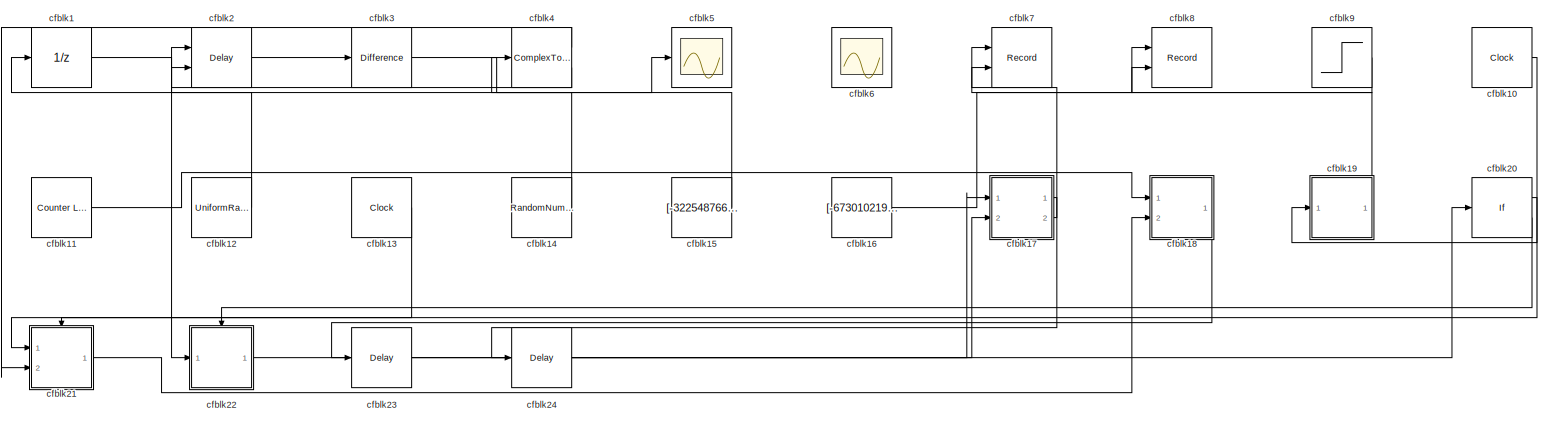
[diagram: root canvas - part 1/1, most of the canvas]
MODEL slx_ebdbb75d2bf2
KIND model
CONFIG AbsTol = auto
CONFIG EnableMultiTasking = off
CONFIG FixedStep = auto
CONFIG MaxStep = auto
CONFIG MinStep = auto
CONFIG RelTol = 1e-3
CONFIG SampleTimeConstraint = Unconstrained
CONFIG SolverName = VariableStepAuto
CONFIG StartTime = 0.0
CONFIG StopTime = 10.0
BLOCK [UnitDelay] cfblk1
  HasFrameUpgradeWarning = on
BLOCK [Clock] cfblk10
BLOCK [Reference] cfblk11  REF=simulink/Sources/Counter
Limited
  Ports = [0, 1]
  SourceBlock = simulink/Sources/Counter\nLimited
  SourceProductBaseCode = SL
  SourceType = Counter Limited
BLOCK [UniformRandomNumber] cfblk12
  Maximum = [4403446205.768578]
  Minimum = [-8333604584.276587]
  SampleTime = 0.1
  Seed = [18033100.000000]
BLOCK [Clock] cfblk13
BLOCK [RandomNumber] cfblk14
  Mean = [-85676.971278]
  SampleTime = 0.1
  Seed = [449411398.000000]
  Variance = [37777.208341]
BLOCK [Constant] cfblk15
  SampleTime = 1
  Value = [-322548766.583663]
BLOCK [Constant] cfblk16
  SampleTime = 1
  Value = [-673010219.535015]
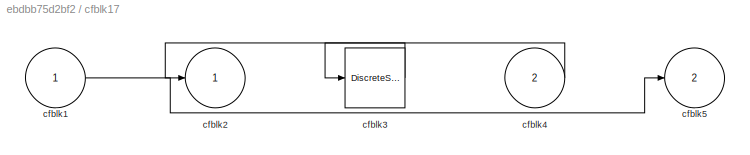
BLOCK [SubSystem] cfblk17
  Ports = [2, 2]
  RequestExecContextInheritance = off
BLOCK [Inport] cfblk17/cfblk1
BLOCK [Outport] cfblk17/cfblk2
BLOCK [DiscreteStateSpace] cfblk17/cfblk3
BLOCK [Inport] cfblk17/cfblk4
  Port = 2
BLOCK [Outport] cfblk17/cfblk5
  Port = 2
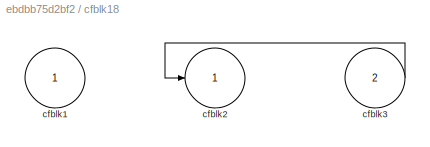
BLOCK [SubSystem] cfblk18
  Ports = [2, 1]
  RequestExecContextInheritance = off
BLOCK [Inport] cfblk18/cfblk1
BLOCK [Outport] cfblk18/cfblk2
BLOCK [Inport] cfblk18/cfblk3
  Port = 2
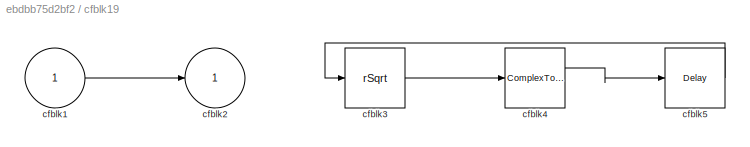
BLOCK [SubSystem] cfblk19
  Ports = [1, 1]
  RequestExecContextInheritance = off
BLOCK [Inport] cfblk19/cfblk1
BLOCK [Outport] cfblk19/cfblk2
BLOCK [Sqrt] cfblk19/cfblk3
  AlgorithmType = Newton-Raphson
  Operator = rSqrt
BLOCK [ComplexToMagnitudeAngle] cfblk19/cfblk4
  Ports = [1, 2]
BLOCK [Delay] cfblk19/cfblk5
  InputPortMap = u0
  Ports = [1, 1]
  SampleTime = 1
BLOCK [Delay] cfblk2
  InputPortMap = u0,e6
  Ports = [2, 1]
  SampleTime = 1
  ShowEnablePort = on
BLOCK [If] cfblk20
  IfExpression = u1 >= 0
  Ports = [1, 2]
  SampleTime = 1
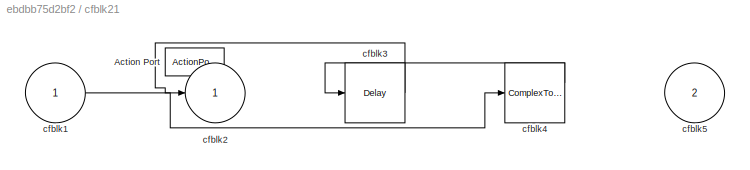
BLOCK [SubSystem] cfblk21
  Ports = [2, 1, 0, 0, 0, 0, 0, 1]
  RequestExecContextInheritance = off
  TreatAsAtomicUnit = on
BLOCK [ActionPort] cfblk21/Action Port
  ActionPortLabel = if(u1 >= 0)
BLOCK [Inport] cfblk21/cfblk1
BLOCK [Outport] cfblk21/cfblk2
BLOCK [Delay] cfblk21/cfblk3
  InputPortMap = u0
  Ports = [1, 1]
BLOCK [ComplexToMagnitudeAngle] cfblk21/cfblk4
  Ports = [1, 2]
BLOCK [Inport] cfblk21/cfblk5
  Port = 2
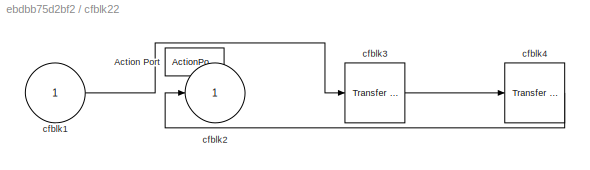
BLOCK [SubSystem] cfblk22
  Ports = [1, 1, 0, 0, 0, 0, 0, 1]
  RequestExecContextInheritance = off
  TreatAsAtomicUnit = on
BLOCK [ActionPort] cfblk22/Action Port
  ActionPortLabel = else
BLOCK [Inport] cfblk22/cfblk1
BLOCK [Outport] cfblk22/cfblk2
BLOCK [Reference] cfblk22/cfblk3  REF=simulink/Discrete/Transfer Fcn
First Order
  Ports = [1, 1]
  SourceBlock = simulink/Discrete/Transfer Fcn\nFirst Order
  SourceProductBaseCode = SL
  SourceType = First Order Transfer Fcn
BLOCK [Reference] cfblk22/cfblk4  REF=simulink/Discrete/Transfer Fcn
Real Zero
  Ports = [1, 1]
  SourceBlock = simulink/Discrete/Transfer Fcn\nReal Zero
  SourceProductBaseCode = SL
  SourceType = Transfer Fcn Real Zero
BLOCK [Delay] cfblk23
  InputPortMap = u0
  Ports = [1, 1]
  SampleTime = 1
BLOCK [Delay] cfblk24
  InputPortMap = u0
  Ports = [1, 1]
  SampleTime = 1
BLOCK [Reference] cfblk3  REF=simulink/Discrete/Difference
  Ports = [1, 1]
  SourceBlock = simulink/Discrete/Difference
  SourceProductBaseCode = SL
  SourceType = Difference
BLOCK [ComplexToRealImag] cfblk4
  Ports = [1, 2]
BLOCK [Scope] cfblk5
  Floating = off
  NumInputPorts = 1
  Ports = [1]
BLOCK [Scope] cfblk6
  Floating = on
  NumInputPorts = 1
  Ports = []
BLOCK [Record] cfblk7
  CompatibilityTag = XY
  FileSettingsInternal = {"entries":[{"content":{"excelSettings":{"content":{},"type":"Streamout.ExcelSettings"}},"type":"Streamout.FileSettingStorage","uuid":"5c71d447-f7da-4f7c-b588-233883b38dc8"}],"packageUris":["http://schema.mathworks.com/mf0/streamout_blocks/R2020a"],"version":"1.0"}
  Layout = [1 1]
  Ports = [2]
  SignalsInternal = {"entries":[{"content":{"signals":[{"content":{"blockPath":["sampleModel142/cfblk7"],"channel":[],"dimensions":[1],"domain":"sampleModel142/cfblk7","lineColor":"#a2142f","plots":[1],"port":1,"sid":[""],"signalID":5084,"signalName":"cfblk19"},"type":"RecordBlkView.Signal","uuid":"97ec9cb9-f7b3-439a-8cdd-f76885870326"},{"content":{"blockPath":["sampleModel142/cfblk7"],"channel":[],"dimensions":[1],"...<+381ch>
  VisualizationBindings = {"xyplotplugin":{"info":[{"series":[{"bindingParametersList":[{"parameter":"X-Axis","signalID":5084,"signalName":"cfblk19"},{"parameter":"Y-Axis","signalID":5088,"signalName":"cfblk17:2"}],"seriesID":5101}],"subplotID":1}]}}
BLOCK [Record] cfblk8
  CompatibilityTag = XY
  FileSettingsInternal = {"entries":[{"content":{"excelSettings":{"content":{},"type":"Streamout.ExcelSettings"}},"type":"Streamout.FileSettingStorage","uuid":"71c9d5a3-c152-467a-b858-d0dacf1fa973"}],"packageUris":["http://schema.mathworks.com/mf0/streamout_blocks/R2020a"],"version":"1.0"}
  Layout = [1 1]
  Ports = [2]
  SignalsInternal = {"entries":[{"content":{"signals":[{"content":{"blockPath":["sampleModel142/cfblk8"],"channel":[],"dimensions":[1],"domain":"sampleModel142/cfblk8","lineColor":"#a2142f","plots":[1],"port":1,"sid":[""],"signalID":5092,"signalName":"cfblk16"},"type":"RecordBlkView.Signal","uuid":"f4abf7b8-dd59-415d-a572-516493bc83e6"},{"content":{"blockPath":["sampleModel142/cfblk8"],"channel":[],"dimensions":[1],"...<+378ch>
  VisualizationBindings = {"xyplotplugin":{"info":[{"series":[{"bindingParametersList":[{"parameter":"X-Axis","signalID":5092,"signalName":"cfblk16"},{"parameter":"Y-Axis","signalID":5096,"signalName":"cfblk9"}],"seriesID":27610}],"subplotID":1}]}}
BLOCK [Step] cfblk9
  After = [137868448.767294]
  Before = [896019277.368036]
  SampleTime = 0
  Time = [2.000000]
LINE cfblk10:1 -> cfblk19:1
LINE cfblk11:1 -> cfblk18:1
LINE cfblk12:1 -> cfblk1:1
LINE cfblk13:1 -> cfblk21:1
LINE cfblk14:1 -> cfblk4:1
LINE cfblk15:1 -> cfblk2:1
LINE cfblk16:1 -> cfblk8:1
LINE cfblk17/cfblk1:1 -> cfblk17/cfblk5:1
LINE cfblk17/cfblk3:1 -> cfblk17/cfblk2:1
LINE cfblk17/cfblk4:1 -> cfblk17/cfblk3:1
LINE cfblk17:1 -> cfblk24:1
LINE cfblk17:2 -> cfblk7:2
LINE cfblk18/cfblk3:1 -> cfblk18/cfblk2:1
LINE cfblk18:1 -> cfblk23:1
LINE cfblk19/cfblk1:1 -> cfblk19/cfblk2:1
LINE cfblk19/cfblk3:1 -> cfblk19/cfblk4:1
LINE cfblk19/cfblk4:1 -> cfblk19/cfblk5:1
LINE cfblk19/cfblk5:1 -> cfblk19/cfblk3:1
LINE cfblk19:1 -> cfblk7:1
LINE cfblk1:1 -> cfblk22:1
LINE cfblk20:1 -> cfblk21:ifaction
LINE cfblk20:2 -> cfblk22:ifaction
LINE cfblk21/cfblk1:1 -> cfblk21/cfblk4:1
LINE cfblk21/cfblk3:1 -> cfblk21/cfblk2:1
LINE cfblk21/cfblk4:1 -> cfblk21/cfblk3:1
LINE cfblk21:1 -> cfblk18:2
LINE cfblk22/cfblk1:1 -> cfblk22/cfblk3:1
LINE cfblk22/cfblk3:1 -> cfblk22/cfblk4:1
LINE cfblk22/cfblk4:1 -> cfblk22/cfblk2:1
LINE cfblk22:1 -> cfblk17:2
LINE cfblk23:1 -> cfblk17:1
LINE cfblk24:1 -> cfblk20:1
LINE cfblk2:1 -> cfblk3:1
LINE cfblk3:1 -> cfblk5:1
LINE cfblk4:1 -> cfblk21:2
LINE cfblk4:2 -> cfblk2:2
LINE cfblk9:1 -> cfblk8:2
